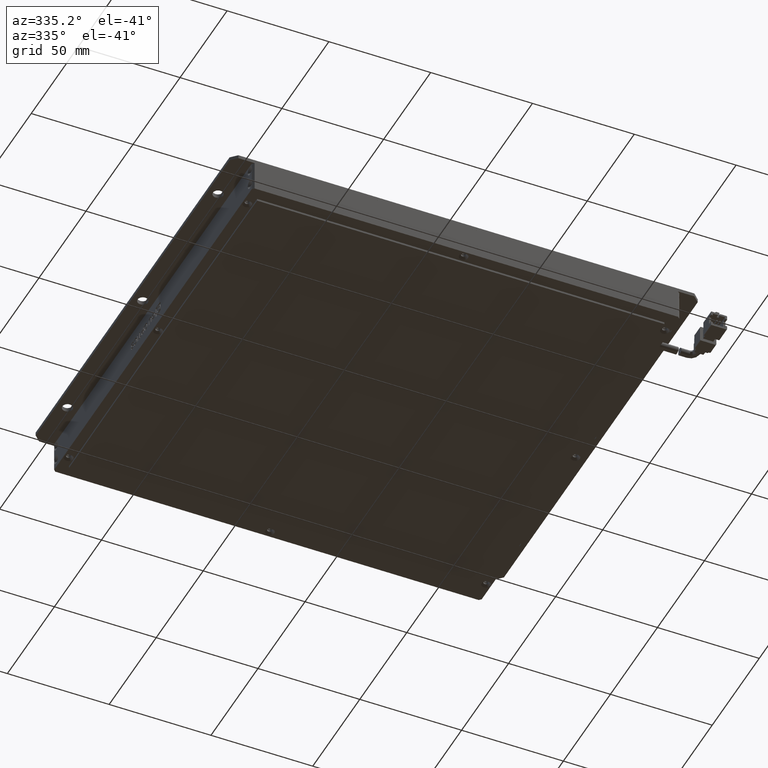
[diagram: clean part render]
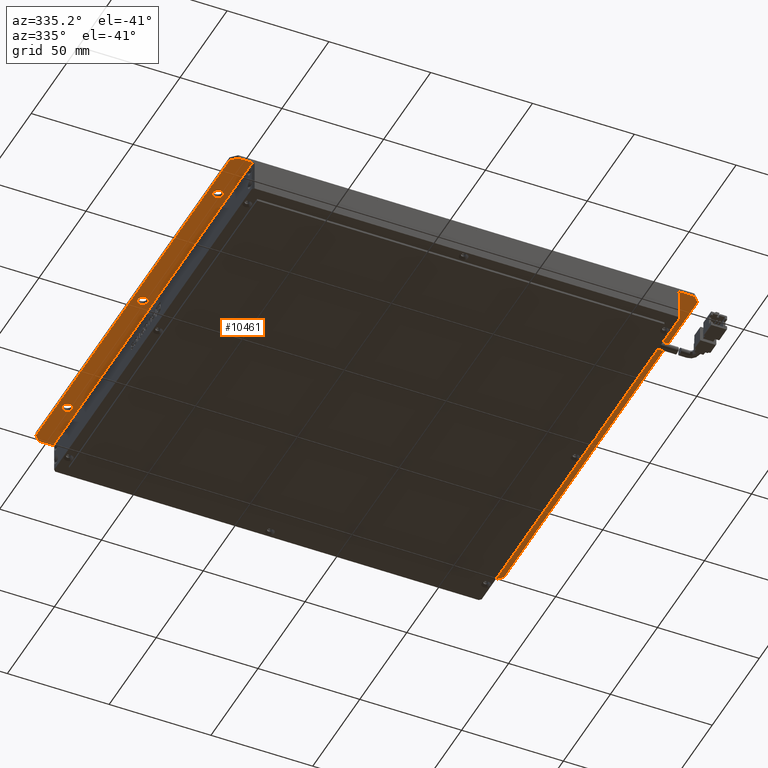
[diagram: same view with one face highlighted and labeled with its STEP entity id]
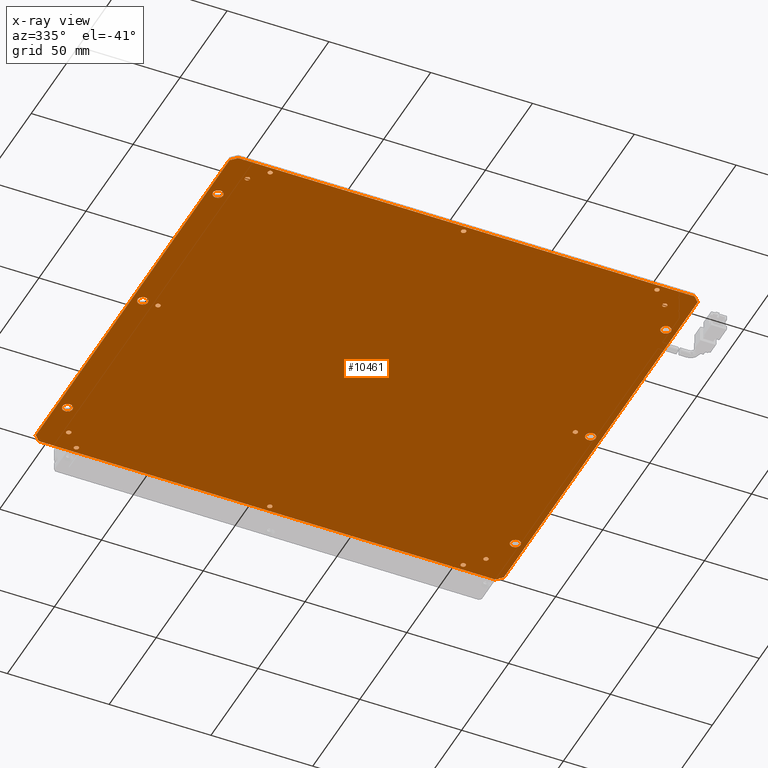
[diagram: x-ray of the same camera — body ghosted, the highlighted face saturated]
A machine part, auxiliary view. The second image highlights one B-rep face of the part: STEP entity #10461.
The next image is the same camera in x-ray: the body ghosted, the highlighted face saturated — about 0% of this face is hidden behind the body in this view.
In plain terms, the highlighted planar face has unit normal (0, -0, 1).
Its self-contained STEP definition (entity closure, byte-faithful):
#143 = ORIENTED_EDGE ( 'NONE', *, *, #17638, .F. ) ;
#157 = EDGE_CURVE ( 'NONE', #3911, #4724, #6068, .T. ) ;
#185 = AXIS2_PLACEMENT_3D ( 'NONE', #18544, #21696, #1172 ) ;
#274 = CARTESIAN_POINT ( 'NONE',  ( 119.9657505824761000, -128.3787539827808100, -2.364644938190885200E-011 ) ) ;
#382 = EDGE_CURVE ( 'NONE', #9693, #5017, #9885, .T. ) ;
#434 = ORIENTED_EDGE ( 'NONE', *, *, #11810, .F. ) ;
#505 = CARTESIAN_POINT ( 'NONE',  ( -96.33424941752389300, -136.3787539827808400, -2.364688306277784600E-011 ) ) ;
#520 = EDGE_LOOP ( 'NONE', ( #9118, #19208 ) ) ;
#571 = CIRCLE ( 'NONE', #9453, 1.199999999999992600 ) ;
#660 = EDGE_LOOP ( 'NONE', ( #4046, #15509 ) ) ;
#705 = DIRECTION ( 'NONE',  ( 0.0000000000000000000, 0.0000000000000000000, -1.000000000000000000 ) ) ;
#714 = VERTEX_POINT ( 'NONE', #3132 ) ;
#753 = ORIENTED_EDGE ( 'NONE', *, *, #14719, .F. ) ;
#892 = CARTESIAN_POINT ( 'NONE',  ( 114.8657505824761700, -136.3787539827808900, -2.364644938190885200E-011 ) ) ;
#925 = EDGE_LOOP ( 'NONE', ( #7444, #6354 ) ) ;
#991 = CIRCLE ( 'NONE', #8288, 2.500000000000002200 ) ;
#1027 = VERTEX_POINT ( 'NONE', #17676 ) ;
#1083 = EDGE_CURVE ( 'NONE', #20893, #6088, #17975, .T. ) ;
#1172 = DIRECTION ( 'NONE',  ( 1.000000000000000000, 0.0000000000000000000, 0.0000000000000000000 ) ) ;
#1206 = EDGE_LOOP ( 'NONE', ( #22317, #7381 ) ) ;
#1209 = VERTEX_POINT ( 'NONE', #18737 ) ;
#1268 = VERTEX_POINT ( 'NONE', #20265 ) ;
#1495 = VERTEX_POINT ( 'NONE', #3640 ) ;
#1507 = CIRCLE ( 'NONE', #185, 2.500000000000002200 ) ;
#1515 = EDGE_CURVE ( 'NONE', #9622, #4455, #11679, .T. ) ;
#1516 = DIRECTION ( 'NONE',  ( 0.0000000000000000000, 0.0000000000000000000, -1.000000000000000000 ) ) ;
#1565 = LINE ( 'NONE', #16076, #1860 ) ;
#1624 = DIRECTION ( 'NONE',  ( 0.0000000000000000000, 0.0000000000000000000, -1.000000000000000000 ) ) ;
#1860 = VECTOR ( 'NONE', #17607, 1000.000000000000000 ) ;
#1871 = EDGE_LOOP ( 'NONE', ( #3506, #7726 ) ) ;
#2122 = CARTESIAN_POINT ( 'NONE',  ( -88.83424941752386400, -113.3787539827808200, -2.364688306277784600E-011 ) ) ;
#2137 = DIRECTION ( 'NONE',  ( -0.7071067811865474600, 0.7071067811865474600, 0.0000000000000000000 ) ) ;
#2156 = CARTESIAN_POINT ( 'NONE',  ( 113.6657505824760800, 69.62124601721916400, -2.364644938190885200E-011 ) ) ;
#2179 = DIRECTION ( 'NONE',  ( 1.000000000000000000, 0.0000000000000000000, 0.0000000000000000000 ) ) ;
#2196 = EDGE_CURVE ( 'NONE', #4455, #9622, #1507, .T. ) ;
#2314 = CARTESIAN_POINT ( 'NONE',  ( 130.6657505824760500, 72.62124601721916400, -2.364753358408133700E-011 ) ) ;
#2392 = CARTESIAN_POINT ( 'NONE',  ( 133.6657505824761100, 69.62124601721913600, -2.364720832342959200E-011 ) ) ;
#2394 = ORIENTED_EDGE ( 'NONE', *, *, #18205, .F. ) ;
#2492 = FACE_BOUND ( 'NONE', #17562, .T. ) ;
#2524 = CARTESIAN_POINT ( 'NONE',  ( -93.33424941752387800, 72.62124601721916400, -2.364688306277784600E-011 ) ) ;
#2525 = AXIS2_PLACEMENT_3D ( 'NONE', #2617, #14884, #4504 ) ;
#2581 = CIRCLE ( 'NONE', #10478, 1.200000000000006600 ) ;
#2617 = CARTESIAN_POINT ( 'NONE',  ( 128.6657505824760500, -113.3787539827808200, -2.364688306277784600E-011 ) ) ;
#2675 = CARTESIAN_POINT ( 'NONE',  ( 128.6657505824760500, -113.3787539827808200, -2.364688306277784600E-011 ) ) ;
#2841 = ORIENTED_EDGE ( 'NONE', *, *, #15551, .F. ) ;
#2866 = CIRCLE ( 'NONE', #11834, 1.200000000000006600 ) ;
#3028 = VERTEX_POINT ( 'NONE', #6779 ) ;
#3043 = FACE_BOUND ( 'NONE', #9179, .T. ) ;
#3132 = CARTESIAN_POINT ( 'NONE',  ( -96.33424941752389300, 69.62124601721916400, -2.364753358408133700E-011 ) ) ;
#3232 = DIRECTION ( 'NONE',  ( 0.0000000000000000000, 0.0000000000000000000, -1.000000000000000000 ) ) ;
#3249 = DIRECTION ( 'NONE',  ( 1.000000000000000000, 0.0000000000000000000, 0.0000000000000000000 ) ) ;
#3281 = EDGE_LOOP ( 'NONE', ( #17972, #9119 ) ) ;
#3285 = ORIENTED_EDGE ( 'NONE', *, *, #4067, .F. ) ;
#3333 = FACE_BOUND ( 'NONE', #1206, .T. ) ;
#3354 = CIRCLE ( 'NONE', #21901, 1.200000000000006600 ) ;
#3450 = VERTEX_POINT ( 'NONE', #11486 ) ;
#3506 = ORIENTED_EDGE ( 'NONE', *, *, #12551, .F. ) ;
#3519 = DIRECTION ( 'NONE',  ( 1.000000000000000000, 0.0000000000000000000, 0.0000000000000000000 ) ) ;
#3564 = EDGE_LOOP ( 'NONE', ( #16340, #18823 ) ) ;
#3640 = CARTESIAN_POINT ( 'NONE',  ( -82.63424941752390400, 61.62124601721919200, -2.364644938190885200E-011 ) ) ;
#3647 = LINE ( 'NONE', #10939, #17005 ) ;
#3662 = DIRECTION ( 'NONE',  ( 1.000000000000000000, 0.0000000000000000000, 0.0000000000000000000 ) ) ;
#3683 = DIRECTION ( 'NONE',  ( -1.000000000000000000, -0.0000000000000000000, 0.0000000000000000000 ) ) ;
#3727 = DIRECTION ( 'NONE',  ( 0.0000000000000000000, 0.0000000000000000000, -1.000000000000000000 ) ) ;
#3766 = EDGE_CURVE ( 'NONE', #10776, #9407, #22547, .T. ) ;
#3769 = CIRCLE ( 'NONE', #22122, 1.200000000000006600 ) ;
#3889 = ORIENTED_EDGE ( 'NONE', *, *, #12560, .F. ) ;
#3911 = VERTEX_POINT ( 'NONE', #22159 ) ;
#3946 = CARTESIAN_POINT ( 'NONE',  ( -93.83424941752386400, -113.3787539827808200, -2.364688306277784600E-011 ) ) ;
#3996 = CARTESIAN_POINT ( 'NONE',  ( 113.6657505824760800, 69.62124601721916400, -2.364644938190885200E-011 ) ) ;
#4046 = ORIENTED_EDGE ( 'NONE', *, *, #4486, .F. ) ;
#4067 = EDGE_CURVE ( 'NONE', #16306, #16516, #5098, .T. ) ;
#4126 = FACE_BOUND ( 'NONE', #20449, .T. ) ;
#4130 = EDGE_CURVE ( 'NONE', #714, #12536, #1565, .T. ) ;
#4159 = DIRECTION ( 'NONE',  ( 0.0000000000000000000, 0.0000000000000000000, -1.000000000000000000 ) ) ;
#4220 = ORIENTED_EDGE ( 'NONE', *, *, #9744, .F. ) ;
#4241 = CIRCLE ( 'NONE', #6389, 2.500000000000002200 ) ;
#4271 = DIRECTION ( 'NONE',  ( 0.7071067811865474600, -0.7071067811865474600, 0.0000000000000000000 ) ) ;
#4315 = AXIS2_PLACEMENT_3D ( 'NONE', #8074, #9818, #21944 ) ;
#4400 = DIRECTION ( 'NONE',  ( 0.0000000000000000000, 0.0000000000000000000, -1.000000000000000000 ) ) ;
#4455 = VERTEX_POINT ( 'NONE', #11519 ) ;
#4486 = EDGE_CURVE ( 'NONE', #4613, #8793, #991, .T. ) ;
#4504 = DIRECTION ( 'NONE',  ( 1.000000000000000000, 0.0000000000000000000, 0.0000000000000000000 ) ) ;
#4520 = DIRECTION ( 'NONE',  ( 0.0000000000000000000, 0.0000000000000000000, -1.000000000000000000 ) ) ;
#4569 = ORIENTED_EDGE ( 'NONE', *, *, #3766, .F. ) ;
#4613 = VERTEX_POINT ( 'NONE', #2122 ) ;
#4724 = VERTEX_POINT ( 'NONE', #892 ) ;
#4735 = EDGE_CURVE ( 'NONE', #13693, #21907, #2581, .T. ) ;
#4744 = VERTEX_POINT ( 'NONE', #7620 ) ;
#4765 = CIRCLE ( 'NONE', #5827, 1.199999999999992600 ) ;
#4797 = CIRCLE ( 'NONE', #12554, 1.200000000000006600 ) ;
#4816 = VERTEX_POINT ( 'NONE', #18348 ) ;
#4829 = DIRECTION ( 'NONE',  ( 1.000000000000000000, 0.0000000000000000000, 0.0000000000000000000 ) ) ;
#4859 = CARTESIAN_POINT ( 'NONE',  ( 131.1657505824760800, -33.37875398278082900, -2.364688306277784600E-011 ) ) ;
#4899 = CARTESIAN_POINT ( 'NONE',  ( 18.66575058247609000, 69.62124601721916400, -2.364644938190885200E-011 ) ) ;
#4939 = AXIS2_PLACEMENT_3D ( 'NONE', #10382, #17500, #22498 ) ;
#5017 = VERTEX_POINT ( 'NONE', #10517 ) ;
#5064 = DIRECTION ( 'NONE',  ( 0.0000000000000000000, 0.0000000000000000000, -1.000000000000000000 ) ) ;
#5098 = CIRCLE ( 'NONE', #6959, 1.200000000000006600 ) ;
#5268 = EDGE_LOOP ( 'NONE', ( #11684, #2394 ) ) ;
#5346 = CIRCLE ( 'NONE', #10364, 1.199999999999992600 ) ;
#5348 = DIRECTION ( 'NONE',  ( 1.000000000000000000, 0.0000000000000000000, 0.0000000000000000000 ) ) ;
#5426 = DIRECTION ( 'NONE',  ( 1.000000000000000000, 0.0000000000000000000, 0.0000000000000000000 ) ) ;
#5604 = CIRCLE ( 'NONE', #7507, 1.200000000000006600 ) ;
#5611 = EDGE_CURVE ( 'NONE', #21907, #13693, #20407, .T. ) ;
#5630 = CARTESIAN_POINT ( 'NONE',  ( 122.3657505824760700, 61.62124601721919200, -2.364644938190885200E-011 ) ) ;
#5645 = AXIS2_PLACEMENT_3D ( 'NONE', #14819, #6072, #18250 ) ;
#5650 = CIRCLE ( 'NONE', #4939, 2.500000000000002200 ) ;
#5717 = ORIENTED_EDGE ( 'NONE', *, *, #17994, .F. ) ;
#5742 = DIRECTION ( 'NONE',  ( 1.000000000000000000, 0.0000000000000000000, 0.0000000000000000000 ) ) ;
#5827 = AXIS2_PLACEMENT_3D ( 'NONE', #12233, #17454, #7043 ) ;
#5901 = DIRECTION ( 'NONE',  ( 1.000000000000000000, 0.0000000000000000000, 0.0000000000000000000 ) ) ;
#5914 = EDGE_CURVE ( 'NONE', #16768, #14773, #3769, .T. ) ;
#6068 = CIRCLE ( 'NONE', #4315, 1.200000000000006600 ) ;
#6072 = DIRECTION ( 'NONE',  ( 0.0000000000000000000, 0.0000000000000000000, -1.000000000000000000 ) ) ;
#6088 = VERTEX_POINT ( 'NONE', #4859 ) ;
#6173 = DIRECTION ( 'NONE',  ( 0.0000000000000000000, 0.0000000000000000000, -1.000000000000000000 ) ) ;
#6179 = CIRCLE ( 'NONE', #22269, 1.199999999999992600 ) ;
#6278 = AXIS2_PLACEMENT_3D ( 'NONE', #20874, #13982, #3519 ) ;
#6354 = ORIENTED_EDGE ( 'NONE', *, *, #1083, .F. ) ;
#6358 = EDGE_LOOP ( 'NONE', ( #20608, #12833 ) ) ;
#6373 = CARTESIAN_POINT ( 'NONE',  ( -82.63424941752387600, -128.3787539827808100, -2.364644938190885200E-011 ) ) ;
#6384 = AXIS2_PLACEMENT_3D ( 'NONE', #15113, #13909, #20720 ) ;
#6389 = AXIS2_PLACEMENT_3D ( 'NONE', #8882, #1624, #3662 ) ;
#6420 = CARTESIAN_POINT ( 'NONE',  ( 19.86575058247608200, 69.62124601721916400, -2.364644938190885200E-011 ) ) ;
#6516 = DIRECTION ( 'NONE',  ( 0.0000000000000000000, 0.0000000000000000000, -1.000000000000000000 ) ) ;
#6603 = FACE_BOUND ( 'NONE', #3281, .T. ) ;
#6671 = CIRCLE ( 'NONE', #9692, 1.199999999999992600 ) ;
#6680 = DIRECTION ( 'NONE',  ( 1.000000000000000000, 0.0000000000000000000, 0.0000000000000000000 ) ) ;
#6760 = ORIENTED_EDGE ( 'NONE', *, *, #382, .F. ) ;
#6764 = AXIS2_PLACEMENT_3D ( 'NONE', #3996, #19615, #9165 ) ;
#6779 = CARTESIAN_POINT ( 'NONE',  ( 17.46575058247609700, 69.62124601721916400, -2.364644938190885200E-011 ) ) ;
#6837 = VERTEX_POINT ( 'NONE', #18244 ) ;
#6847 = DIRECTION ( 'NONE',  ( 0.0000000000000000000, 0.0000000000000000000, -1.000000000000000000 ) ) ;
#6887 = VERTEX_POINT ( 'NONE', #2392 ) ;
#6926 = CIRCLE ( 'NONE', #6278, 2.500000000000002200 ) ;
#6959 = AXIS2_PLACEMENT_3D ( 'NONE', #8596, #10488, #19064 ) ;
#7043 = DIRECTION ( 'NONE',  ( 1.000000000000000000, 0.0000000000000000000, 0.0000000000000000000 ) ) ;
#7112 = CIRCLE ( 'NONE', #7397, 1.199999999999992600 ) ;
#7145 = DIRECTION ( 'NONE',  ( 0.0000000000000000000, 1.000000000000000000, 0.0000000000000000000 ) ) ;
#7161 = FACE_BOUND ( 'NONE', #1871, .T. ) ;
#7214 = CARTESIAN_POINT ( 'NONE',  ( 122.3657505824761200, -33.37875398278082900, -2.364644938190885200E-011 ) ) ;
#7217 = CARTESIAN_POINT ( 'NONE',  ( 133.6657505824761400, 72.62124601721916400, -2.364688306277784600E-011 ) ) ;
#7225 = VECTOR ( 'NONE', #18391, 1000.000000000000100 ) ;
#7262 = CARTESIAN_POINT ( 'NONE',  ( 121.1657505824760500, 61.62124601721919200, -2.364644938190885200E-011 ) ) ;
#7339 = VERTEX_POINT ( 'NONE', #17843 ) ;
#7372 = VECTOR ( 'NONE', #3683, 1000.000000000000000 ) ;
#7381 = ORIENTED_EDGE ( 'NONE', *, *, #157, .F. ) ;
#7397 = AXIS2_PLACEMENT_3D ( 'NONE', #13533, #5064, #17333 ) ;
#7444 = ORIENTED_EDGE ( 'NONE', *, *, #16946, .F. ) ;
#7507 = AXIS2_PLACEMENT_3D ( 'NONE', #11948, #3232, #4829 ) ;
#7620 = CARTESIAN_POINT ( 'NONE',  ( -77.53424941752391000, 69.62124601721916400, -2.364644938190885200E-011 ) ) ;
#7696 = AXIS2_PLACEMENT_3D ( 'NONE', #2675, #14732, #7964 ) ;
#7699 = FACE_BOUND ( 'NONE', #6358, .T. ) ;
#7726 = ORIENTED_EDGE ( 'NONE', *, *, #17556, .F. ) ;
#7835 = ORIENTED_EDGE ( 'NONE', *, *, #10546, .F. ) ;
#7964 = DIRECTION ( 'NONE',  ( 1.000000000000000000, 0.0000000000000000000, 0.0000000000000000000 ) ) ;
#8074 = CARTESIAN_POINT ( 'NONE',  ( 113.6657505824761600, -136.3787539827808900, -2.364644938190885200E-011 ) ) ;
#8085 = CARTESIAN_POINT ( 'NONE',  ( 114.8657505824760800, 69.62124601721916400, -2.364644938190885200E-011 ) ) ;
#8125 = DIRECTION ( 'NONE',  ( 1.000000000000000000, 0.0000000000000000000, 0.0000000000000000000 ) ) ;
#8139 = VERTEX_POINT ( 'NONE', #11640 ) ;
#8165 = AXIS2_PLACEMENT_3D ( 'NONE', #10989, #6173, #21311 ) ;
#8253 = EDGE_CURVE ( 'NONE', #8139, #6887, #19635, .T. ) ;
#8272 = DIRECTION ( 'NONE',  ( 0.0000000000000000000, 0.0000000000000000000, -1.000000000000000000 ) ) ;
#8276 = FACE_BOUND ( 'NONE', #11856, .T. ) ;
#8288 = AXIS2_PLACEMENT_3D ( 'NONE', #20315, #8272, #9931 ) ;
#8310 = ORIENTED_EDGE ( 'NONE', *, *, #11649, .F. ) ;
#8402 = CARTESIAN_POINT ( 'NONE',  ( -85.03424941752388100, 61.62124601721919200, -2.364644938190885200E-011 ) ) ;
#8515 = CARTESIAN_POINT ( 'NONE',  ( 126.1657505824760600, -33.37875398278082900, -2.364688306277784600E-011 ) ) ;
#8596 = CARTESIAN_POINT ( 'NONE',  ( -83.83424941752387800, -33.37875398278082900, -2.364644938190885200E-011 ) ) ;
#8793 = VERTEX_POINT ( 'NONE', #3946 ) ;
#8816 = ORIENTED_EDGE ( 'NONE', *, *, #15658, .F. ) ;
#8859 = DIRECTION ( 'NONE',  ( 1.000000000000000000, 0.0000000000000000000, 0.0000000000000000000 ) ) ;
#8882 = CARTESIAN_POINT ( 'NONE',  ( -91.33424941752387800, 46.62124601721917800, -2.364688306277784600E-011 ) ) ;
#8939 = CARTESIAN_POINT ( 'NONE',  ( 121.1657505824761100, -33.37875398278082900, -2.364644938190885200E-011 ) ) ;
#8976 = DIRECTION ( 'NONE',  ( 0.0000000000000000000, 0.0000000000000000000, -1.000000000000000000 ) ) ;
#8984 = CARTESIAN_POINT ( 'NONE',  ( 133.6657505824760800, 72.62124601721916400, -2.364688306277784600E-011 ) ) ;
#9004 = DIRECTION ( 'NONE',  ( 0.0000000000000000000, 0.0000000000000000000, -1.000000000000000000 ) ) ;
#9099 = DIRECTION ( 'NONE',  ( 0.0000000000000000000, 0.0000000000000000000, -1.000000000000000000 ) ) ;
#9118 = ORIENTED_EDGE ( 'NONE', *, *, #9328, .F. ) ;
#9119 = ORIENTED_EDGE ( 'NONE', *, *, #18625, .F. ) ;
#9165 = DIRECTION ( 'NONE',  ( 1.000000000000000000, 0.0000000000000000000, 0.0000000000000000000 ) ) ;
#9166 = CARTESIAN_POINT ( 'NONE',  ( 126.1657505824760600, 46.62124601721915000, -2.364688306277784600E-011 ) ) ;
#9179 = EDGE_LOOP ( 'NONE', ( #2841, #15030 ) ) ;
#9243 = CARTESIAN_POINT ( 'NONE',  ( -83.83424941752387800, -33.37875398278082900, -2.364644938190885200E-011 ) ) ;
#9296 = EDGE_CURVE ( 'NONE', #19514, #14546, #5346, .T. ) ;
#9328 = EDGE_CURVE ( 'NONE', #17440, #3450, #18985, .T. ) ;
#9366 = FACE_BOUND ( 'NONE', #520, .T. ) ;
#9407 = VERTEX_POINT ( 'NONE', #10902 ) ;
#9453 = AXIS2_PLACEMENT_3D ( 'NONE', #19402, #9004, #21129 ) ;
#9589 = PLANE ( 'NONE',  #17065 ) ;
#9617 = DIRECTION ( 'NONE',  ( 0.0000000000000000000, 0.0000000000000000000, -1.000000000000000000 ) ) ;
#9622 = VERTEX_POINT ( 'NONE', #20362 ) ;
#9690 = VERTEX_POINT ( 'NONE', #8085 ) ;
#9692 = AXIS2_PLACEMENT_3D ( 'NONE', #20105, #11324, #5901 ) ;
#9693 = VERTEX_POINT ( 'NONE', #6373 ) ;
#9744 = EDGE_CURVE ( 'NONE', #1209, #19906, #4241, .T. ) ;
#9803 = LINE ( 'NONE', #21732, #16583 ) ;
#9808 = EDGE_CURVE ( 'NONE', #1027, #4816, #4765, .T. ) ;
#9818 = DIRECTION ( 'NONE',  ( 0.0000000000000000000, 0.0000000000000000000, -1.000000000000000000 ) ) ;
#9845 = CARTESIAN_POINT ( 'NONE',  ( 122.3657505824761200, -128.3787539827808100, -2.364644938190885200E-011 ) ) ;
#9870 = EDGE_CURVE ( 'NONE', #6887, #14932, #21373, .T. ) ;
#9885 = CIRCLE ( 'NONE', #21804, 1.200000000000006600 ) ;
#9890 = FACE_BOUND ( 'NONE', #18758, .T. ) ;
#9931 = DIRECTION ( 'NONE',  ( 1.000000000000000000, 0.0000000000000000000, 0.0000000000000000000 ) ) ;
#10137 = CARTESIAN_POINT ( 'NONE',  ( -93.33424941752387800, -139.3787539827808400, -2.364688306277784600E-011 ) ) ;
#10237 = CIRCLE ( 'NONE', #21608, 1.200000000000006600 ) ;
#10262 = VERTEX_POINT ( 'NONE', #9166 ) ;
#10364 = AXIS2_PLACEMENT_3D ( 'NONE', #12649, #9099, #17898 ) ;
#10382 = CARTESIAN_POINT ( 'NONE',  ( 128.6657505824760500, -33.37875398278082900, -2.364688306277784600E-011 ) ) ;
#10461 = ADVANCED_FACE ( 'NONE', ( #11780, #13970, #9366, #20748, #3333, #7699, #3043, #2492, #4126, #6603, #21303, #7161, #9890, #8276, #21832, #16688, #21015, #16395, #20462 ), #9589, .F. ) ;
#10478 = AXIS2_PLACEMENT_3D ( 'NONE', #14835, #4159, #19851 ) ;
#10488 = DIRECTION ( 'NONE',  ( 0.0000000000000000000, 0.0000000000000000000, -1.000000000000000000 ) ) ;
#10517 = CARTESIAN_POINT ( 'NONE',  ( -85.03424941752388100, -128.3787539827808100, -2.364644938190885200E-011 ) ) ;
#10518 = VECTOR ( 'NONE', #2137, 1000.000000000000100 ) ;
#10546 = EDGE_CURVE ( 'NONE', #3028, #11077, #13946, .T. ) ;
#10555 = CARTESIAN_POINT ( 'NONE',  ( -91.33424941752386400, -113.3787539827808200, -2.364688306277784600E-011 ) ) ;
#10571 = DIRECTION ( 'NONE',  ( 1.000000000000000000, 0.0000000000000000000, 0.0000000000000000000 ) ) ;
#10776 = VERTEX_POINT ( 'NONE', #13832 ) ;
#10783 = ORIENTED_EDGE ( 'NONE', *, *, #9870, .F. ) ;
#10902 = CARTESIAN_POINT ( 'NONE',  ( 131.1657505824760800, -113.3787539827808200, -2.364688306277784600E-011 ) ) ;
#10939 = CARTESIAN_POINT ( 'NONE',  ( -96.33424941752389300, -136.3787539827808100, -2.364688306277784600E-011 ) ) ;
#10989 = CARTESIAN_POINT ( 'NONE',  ( 128.6657505824760500, -33.37875398278082900, -2.364688306277784600E-011 ) ) ;
#10995 = CARTESIAN_POINT ( 'NONE',  ( -82.63424941752387600, -33.37875398278082900, -2.364644938190885200E-011 ) ) ;
#11077 = VERTEX_POINT ( 'NONE', #6420 ) ;
#11132 = CIRCLE ( 'NONE', #18228, 2.500000000000002200 ) ;
#11195 = CARTESIAN_POINT ( 'NONE',  ( -83.83424941752387800, -128.3787539827808100, -2.364644938190885200E-011 ) ) ;
#11295 = DIRECTION ( 'NONE',  ( 1.000000000000000000, 0.0000000000000000000, 0.0000000000000000000 ) ) ;
#11316 = VERTEX_POINT ( 'NONE', #22223 ) ;
#11324 = DIRECTION ( 'NONE',  ( 0.0000000000000000000, 0.0000000000000000000, -1.000000000000000000 ) ) ;
#11486 = CARTESIAN_POINT ( 'NONE',  ( 119.9657505824761000, -33.37875398278082900, -2.364644938190885200E-011 ) ) ;
#11519 = CARTESIAN_POINT ( 'NONE',  ( -93.83424941752386400, -33.37875398278082900, -2.364688306277784600E-011 ) ) ;
#11609 = CARTESIAN_POINT ( 'NONE',  ( -85.03424941752388100, -33.37875398278082900, -2.364644938190885200E-011 ) ) ;
#11640 = CARTESIAN_POINT ( 'NONE',  ( 133.6657505824761400, -136.3787539827808100, -2.364753358408133700E-011 ) ) ;
#11649 = EDGE_CURVE ( 'NONE', #6837, #8139, #9803, .T. ) ;
#11679 = CIRCLE ( 'NONE', #15443, 2.500000000000002200 ) ;
#11684 = ORIENTED_EDGE ( 'NONE', *, *, #5914, .F. ) ;
#11780 = FACE_OUTER_BOUND ( 'NONE', #13748, .T. ) ;
#11808 = DIRECTION ( 'NONE',  ( 1.000000000000000000, 0.0000000000000000000, 0.0000000000000000000 ) ) ;
#11810 = EDGE_CURVE ( 'NONE', #10262, #7339, #14933, .T. ) ;
#11834 = AXIS2_PLACEMENT_3D ( 'NONE', #21786, #4520, #15123 ) ;
#11856 = EDGE_LOOP ( 'NONE', ( #18865, #4220 ) ) ;
#11858 = ORIENTED_EDGE ( 'NONE', *, *, #13241, .F. ) ;
#11948 = CARTESIAN_POINT ( 'NONE',  ( 121.1657505824761100, -128.3787539827808100, -2.364644938190885200E-011 ) ) ;
#11987 = AXIS2_PLACEMENT_3D ( 'NONE', #4899, #6516, #6680 ) ;
#12018 = LINE ( 'NONE', #8984, #7372 ) ;
#12127 = CIRCLE ( 'NONE', #15527, 1.199999999999992600 ) ;
#12135 = VERTEX_POINT ( 'NONE', #8402 ) ;
#12156 = EDGE_LOOP ( 'NONE', ( #22466, #8816 ) ) ;
#12233 = CARTESIAN_POINT ( 'NONE',  ( -76.33424941752390700, -136.3787539827808100, -2.364644938190885200E-011 ) ) ;
#12420 = ORIENTED_EDGE ( 'NONE', *, *, #22196, .F. ) ;
#12536 = VERTEX_POINT ( 'NONE', #505 ) ;
#12551 = EDGE_CURVE ( 'NONE', #9690, #20292, #13239, .T. ) ;
#12554 = AXIS2_PLACEMENT_3D ( 'NONE', #21665, #9617, #11295 ) ;
#12560 = EDGE_CURVE ( 'NONE', #16516, #16306, #14613, .T. ) ;
#12649 = CARTESIAN_POINT ( 'NONE',  ( 18.66575058247609000, -136.3787539827808600, -2.364644938190885200E-011 ) ) ;
#12833 = ORIENTED_EDGE ( 'NONE', *, *, #17720, .F. ) ;
#12838 = CARTESIAN_POINT ( 'NONE',  ( -83.83424941752389300, 61.62124601721919200, -2.364644938190885200E-011 ) ) ;
#13239 = CIRCLE ( 'NONE', #6764, 1.200000000000006600 ) ;
#13241 = EDGE_CURVE ( 'NONE', #12536, #13999, #3647, .T. ) ;
#13367 = CIRCLE ( 'NONE', #6384, 1.199999999999992600 ) ;
#13375 = DIRECTION ( 'NONE',  ( 0.0000000000000000000, -0.0000000000000000000, 1.000000000000000000 ) ) ;
#13505 = DIRECTION ( 'NONE',  ( 0.0000000000000000000, 0.0000000000000000000, -1.000000000000000000 ) ) ;
#13533 = CARTESIAN_POINT ( 'NONE',  ( -76.33424941752390700, 69.62124601721916400, -2.364644938190885200E-011 ) ) ;
#13693 = VERTEX_POINT ( 'NONE', #5630 ) ;
#13748 = EDGE_LOOP ( 'NONE', ( #10783, #21179, #8310, #18953, #11858, #17640, #143, #753 ) ) ;
#13832 = CARTESIAN_POINT ( 'NONE',  ( 126.1657505824760600, -113.3787539827808200, -2.364688306277784600E-011 ) ) ;
#13857 = CARTESIAN_POINT ( 'NONE',  ( -91.33424941752387800, 46.62124601721917800, -2.364688306277784600E-011 ) ) ;
#13909 = DIRECTION ( 'NONE',  ( 0.0000000000000000000, 0.0000000000000000000, -1.000000000000000000 ) ) ;
#13912 = CARTESIAN_POINT ( 'NONE',  ( -83.83424941752387800, -128.3787539827808100, -2.364644938190885200E-011 ) ) ;
#13946 = CIRCLE ( 'NONE', #11987, 1.199999999999992600 ) ;
#13970 = FACE_BOUND ( 'NONE', #5268, .T. ) ;
#13982 = DIRECTION ( 'NONE',  ( 0.0000000000000000000, 0.0000000000000000000, -1.000000000000000000 ) ) ;
#13999 = VERTEX_POINT ( 'NONE', #10137 ) ;
#14174 = DIRECTION ( 'NONE',  ( 0.0000000000000000000, 0.0000000000000000000, -1.000000000000000000 ) ) ;
#14525 = EDGE_CURVE ( 'NONE', #1268, #4744, #7112, .T. ) ;
#14546 = VERTEX_POINT ( 'NONE', #17029 ) ;
#14613 = CIRCLE ( 'NONE', #16824, 1.200000000000006600 ) ;
#14719 = EDGE_CURVE ( 'NONE', #14932, #11316, #12018, .T. ) ;
#14732 = DIRECTION ( 'NONE',  ( 0.0000000000000000000, 0.0000000000000000000, -1.000000000000000000 ) ) ;
#14773 = VERTEX_POINT ( 'NONE', #274 ) ;
#14819 = CARTESIAN_POINT ( 'NONE',  ( -76.33424941752390700, -136.3787539827808100, -2.364644938190885200E-011 ) ) ;
#14835 = CARTESIAN_POINT ( 'NONE',  ( 121.1657505824760500, 61.62124601721919200, -2.364644938190885200E-011 ) ) ;
#14837 = ORIENTED_EDGE ( 'NONE', *, *, #5611, .F. ) ;
#14853 = CARTESIAN_POINT ( 'NONE',  ( 121.1657505824761100, -128.3787539827808100, -2.364644938190885200E-011 ) ) ;
#14884 = DIRECTION ( 'NONE',  ( 0.0000000000000000000, 0.0000000000000000000, -1.000000000000000000 ) ) ;
#14932 = VERTEX_POINT ( 'NONE', #2314 ) ;
#14933 = CIRCLE ( 'NONE', #21448, 2.500000000000002200 ) ;
#15030 = ORIENTED_EDGE ( 'NONE', *, *, #9808, .F. ) ;
#15047 = EDGE_CURVE ( 'NONE', #9407, #10776, #17773, .T. ) ;
#15083 = EDGE_LOOP ( 'NONE', ( #15140, #14837 ) ) ;
#15113 = CARTESIAN_POINT ( 'NONE',  ( -76.33424941752390700, 69.62124601721916400, -2.364644938190885200E-011 ) ) ;
#15123 = DIRECTION ( 'NONE',  ( 1.000000000000000000, 0.0000000000000000000, 0.0000000000000000000 ) ) ;
#15140 = ORIENTED_EDGE ( 'NONE', *, *, #4735, .F. ) ;
#15392 = EDGE_LOOP ( 'NONE', ( #12420, #434 ) ) ;
#15443 = AXIS2_PLACEMENT_3D ( 'NONE', #15746, #14174, #8859 ) ;
#15509 = ORIENTED_EDGE ( 'NONE', *, *, #16412, .F. ) ;
#15513 = EDGE_CURVE ( 'NONE', #13999, #6837, #19902, .T. ) ;
#15527 = AXIS2_PLACEMENT_3D ( 'NONE', #12838, #705, #5742 ) ;
#15551 = EDGE_CURVE ( 'NONE', #4816, #1027, #21771, .T. ) ;
#15658 = EDGE_CURVE ( 'NONE', #4744, #1268, #13367, .T. ) ;
#15746 = CARTESIAN_POINT ( 'NONE',  ( -91.33424941752386400, -33.37875398278082900, -2.364688306277784600E-011 ) ) ;
#15817 = AXIS2_PLACEMENT_3D ( 'NONE', #13857, #6847, #11808 ) ;
#15840 = DIRECTION ( 'NONE',  ( 0.0000000000000000000, 0.0000000000000000000, -1.000000000000000000 ) ) ;
#16010 = DIRECTION ( 'NONE',  ( 1.000000000000000000, 0.0000000000000000000, 0.0000000000000000000 ) ) ;
#16076 = CARTESIAN_POINT ( 'NONE',  ( -96.33424941752389300, 72.62124601721916400, -2.364688306277784600E-011 ) ) ;
#16306 = VERTEX_POINT ( 'NONE', #11609 ) ;
#16340 = ORIENTED_EDGE ( 'NONE', *, *, #1515, .F. ) ;
#16395 = FACE_BOUND ( 'NONE', #925, .T. ) ;
#16412 = EDGE_CURVE ( 'NONE', #8793, #4613, #11132, .T. ) ;
#16516 = VERTEX_POINT ( 'NONE', #10995 ) ;
#16583 = VECTOR ( 'NONE', #21662, 1000.000000000000100 ) ;
#16598 = DIRECTION ( 'NONE',  ( 1.000000000000000000, 0.0000000000000000000, 0.0000000000000000000 ) ) ;
#16688 = FACE_BOUND ( 'NONE', #660, .T. ) ;
#16768 = VERTEX_POINT ( 'NONE', #9845 ) ;
#16824 = AXIS2_PLACEMENT_3D ( 'NONE', #9243, #21362, #17804 ) ;
#16946 = EDGE_CURVE ( 'NONE', #6088, #20893, #5650, .T. ) ;
#17005 = VECTOR ( 'NONE', #4271, 1000.000000000000100 ) ;
#17029 = CARTESIAN_POINT ( 'NONE',  ( 17.46575058247609700, -136.3787539827808600, -2.364644938190885200E-011 ) ) ;
#17065 = AXIS2_PLACEMENT_3D ( 'NONE', #20054, #13375, #21781 ) ;
#17189 = EDGE_LOOP ( 'NONE', ( #20200, #4569 ) ) ;
#17264 = EDGE_CURVE ( 'NONE', #4724, #3911, #2866, .T. ) ;
#17333 = DIRECTION ( 'NONE',  ( 1.000000000000000000, 0.0000000000000000000, 0.0000000000000000000 ) ) ;
#17440 = VERTEX_POINT ( 'NONE', #7214 ) ;
#17454 = DIRECTION ( 'NONE',  ( 0.0000000000000000000, 0.0000000000000000000, -1.000000000000000000 ) ) ;
#17500 = DIRECTION ( 'NONE',  ( 0.0000000000000000000, 0.0000000000000000000, -1.000000000000000000 ) ) ;
#17556 = EDGE_CURVE ( 'NONE', #20292, #9690, #10237, .T. ) ;
#17562 = EDGE_LOOP ( 'NONE', ( #6760, #5717 ) ) ;
#17607 = DIRECTION ( 'NONE',  ( -0.0000000000000000000, -1.000000000000000000, -0.0000000000000000000 ) ) ;
#17638 = EDGE_CURVE ( 'NONE', #11316, #714, #18386, .T. ) ;
#17640 = ORIENTED_EDGE ( 'NONE', *, *, #4130, .F. ) ;
#17646 = CARTESIAN_POINT ( 'NONE',  ( 19.86575058247608200, -136.3787539827808600, -2.364644938190885200E-011 ) ) ;
#17676 = CARTESIAN_POINT ( 'NONE',  ( -77.53424941752391000, -136.3787539827808100, -2.364644938190885200E-011 ) ) ;
#17720 = EDGE_CURVE ( 'NONE', #14546, #19514, #6671, .T. ) ;
#17742 = VECTOR ( 'NONE', #7145, 1000.000000000000000 ) ;
#17757 = CIRCLE ( 'NONE', #15817, 2.500000000000002200 ) ;
#17762 = AXIS2_PLACEMENT_3D ( 'NONE', #8939, #19333, #21065 ) ;
#17773 = CIRCLE ( 'NONE', #7696, 2.500000000000002200 ) ;
#17804 = DIRECTION ( 'NONE',  ( 1.000000000000000000, 0.0000000000000000000, 0.0000000000000000000 ) ) ;
#17837 = CARTESIAN_POINT ( 'NONE',  ( 133.6657505824760800, 69.62124601721916400, -2.364688306277784600E-011 ) ) ;
#17843 = CARTESIAN_POINT ( 'NONE',  ( 131.1657505824760800, 46.62124601721915000, -2.364688306277784600E-011 ) ) ;
#17898 = DIRECTION ( 'NONE',  ( 1.000000000000000000, 0.0000000000000000000, 0.0000000000000000000 ) ) ;
#17972 = ORIENTED_EDGE ( 'NONE', *, *, #19517, .F. ) ;
#17975 = CIRCLE ( 'NONE', #8165, 2.500000000000002200 ) ;
#17994 = EDGE_CURVE ( 'NONE', #5017, #9693, #3354, .T. ) ;
#18101 = CARTESIAN_POINT ( 'NONE',  ( 119.9657505824760500, 61.62124601721919200, -2.364644938190885200E-011 ) ) ;
#18169 = DIRECTION ( 'NONE',  ( 1.000000000000000000, 0.0000000000000000000, -0.0000000000000000000 ) ) ;
#18205 = EDGE_CURVE ( 'NONE', #14773, #16768, #5604, .T. ) ;
#18228 = AXIS2_PLACEMENT_3D ( 'NONE', #10555, #3727, #5348 ) ;
#18244 = CARTESIAN_POINT ( 'NONE',  ( 130.6657505824761100, -139.3787539827808400, -2.364720832342959200E-011 ) ) ;
#18250 = DIRECTION ( 'NONE',  ( 1.000000000000000000, 0.0000000000000000000, 0.0000000000000000000 ) ) ;
#18348 = CARTESIAN_POINT ( 'NONE',  ( -75.13424941752391800, -136.3787539827808100, -2.364644938190885200E-011 ) ) ;
#18386 = LINE ( 'NONE', #2524, #7225 ) ;
#18391 = DIRECTION ( 'NONE',  ( -0.7071067811865474600, -0.7071067811865474600, 0.0000000000000000000 ) ) ;
#18412 = CARTESIAN_POINT ( 'NONE',  ( 133.6657505824760800, -139.3787539827808400, -2.364688306277784600E-011 ) ) ;
#18541 = CARTESIAN_POINT ( 'NONE',  ( 18.66575058247609000, 69.62124601721916400, -2.364644938190885200E-011 ) ) ;
#18544 = CARTESIAN_POINT ( 'NONE',  ( -91.33424941752386400, -33.37875398278082900, -2.364688306277784600E-011 ) ) ;
#18625 = EDGE_CURVE ( 'NONE', #12135, #1495, #12127, .T. ) ;
#18648 = ORIENTED_EDGE ( 'NONE', *, *, #20840, .F. ) ;
#18737 = CARTESIAN_POINT ( 'NONE',  ( -93.83424941752387800, 46.62124601721917800, -2.364688306277784600E-011 ) ) ;
#18758 = EDGE_LOOP ( 'NONE', ( #18648, #7835 ) ) ;
#18823 = ORIENTED_EDGE ( 'NONE', *, *, #2196, .F. ) ;
#18865 = ORIENTED_EDGE ( 'NONE', *, *, #19262, .F. ) ;
#18953 = ORIENTED_EDGE ( 'NONE', *, *, #15513, .F. ) ;
#18985 = CIRCLE ( 'NONE', #17762, 1.200000000000006600 ) ;
#19064 = DIRECTION ( 'NONE',  ( 1.000000000000000000, 0.0000000000000000000, 0.0000000000000000000 ) ) ;
#19083 = CARTESIAN_POINT ( 'NONE',  ( -88.83424941752387800, 46.62124601721917800, -2.364688306277784600E-011 ) ) ;
#19172 = CARTESIAN_POINT ( 'NONE',  ( 128.6657505824760500, 46.62124601721915000, -2.364688306277784600E-011 ) ) ;
#19208 = ORIENTED_EDGE ( 'NONE', *, *, #21276, .F. ) ;
#19262 = EDGE_CURVE ( 'NONE', #19906, #1209, #17757, .T. ) ;
#19333 = DIRECTION ( 'NONE',  ( 0.0000000000000000000, 0.0000000000000000000, -1.000000000000000000 ) ) ;
#19402 = CARTESIAN_POINT ( 'NONE',  ( -83.83424941752389300, 61.62124601721919200, -2.364644938190885200E-011 ) ) ;
#19514 = VERTEX_POINT ( 'NONE', #17646 ) ;
#19517 = EDGE_CURVE ( 'NONE', #1495, #12135, #571, .T. ) ;
#19615 = DIRECTION ( 'NONE',  ( 0.0000000000000000000, 0.0000000000000000000, -1.000000000000000000 ) ) ;
#19635 = LINE ( 'NONE', #7217, #17742 ) ;
#19738 = DIRECTION ( 'NONE',  ( 0.0000000000000000000, 0.0000000000000000000, -1.000000000000000000 ) ) ;
#19851 = DIRECTION ( 'NONE',  ( 1.000000000000000000, 0.0000000000000000000, 0.0000000000000000000 ) ) ;
#19902 = LINE ( 'NONE', #18412, #20698 ) ;
#19906 = VERTEX_POINT ( 'NONE', #19083 ) ;
#19969 = CARTESIAN_POINT ( 'NONE',  ( 112.4657505824760800, 69.62124601721916400, -2.364644938190885200E-011 ) ) ;
#20054 = CARTESIAN_POINT ( 'NONE',  ( 133.6657505824760800, 72.62124601721916400, -2.364688306277784600E-011 ) ) ;
#20105 = CARTESIAN_POINT ( 'NONE',  ( 18.66575058247609000, -136.3787539827808600, -2.364644938190885200E-011 ) ) ;
#20200 = ORIENTED_EDGE ( 'NONE', *, *, #15047, .F. ) ;
#20265 = CARTESIAN_POINT ( 'NONE',  ( -75.13424941752391800, 69.62124601721916400, -2.364644938190885200E-011 ) ) ;
#20292 = VERTEX_POINT ( 'NONE', #19969 ) ;
#20315 = CARTESIAN_POINT ( 'NONE',  ( -91.33424941752386400, -113.3787539827808200, -2.364688306277784600E-011 ) ) ;
#20362 = CARTESIAN_POINT ( 'NONE',  ( -88.83424941752386400, -33.37875398278082900, -2.364688306277784600E-011 ) ) ;
#20407 = CIRCLE ( 'NONE', #21675, 1.200000000000006600 ) ;
#20449 = EDGE_LOOP ( 'NONE', ( #3889, #3285 ) ) ;
#20462 = FACE_BOUND ( 'NONE', #15392, .T. ) ;
#20608 = ORIENTED_EDGE ( 'NONE', *, *, #9296, .F. ) ;
#20698 = VECTOR ( 'NONE', #18169, 1000.000000000000000 ) ;
#20720 = DIRECTION ( 'NONE',  ( 1.000000000000000000, 0.0000000000000000000, 0.0000000000000000000 ) ) ;
#20748 = FACE_BOUND ( 'NONE', #15083, .T. ) ;
#20840 = EDGE_CURVE ( 'NONE', #11077, #3028, #6179, .T. ) ;
#20874 = CARTESIAN_POINT ( 'NONE',  ( 128.6657505824760500, 46.62124601721915000, -2.364688306277784600E-011 ) ) ;
#20893 = VERTEX_POINT ( 'NONE', #8515 ) ;
#21015 = FACE_BOUND ( 'NONE', #17189, .T. ) ;
#21065 = DIRECTION ( 'NONE',  ( 1.000000000000000000, 0.0000000000000000000, 0.0000000000000000000 ) ) ;
#21129 = DIRECTION ( 'NONE',  ( 1.000000000000000000, 0.0000000000000000000, 0.0000000000000000000 ) ) ;
#21179 = ORIENTED_EDGE ( 'NONE', *, *, #8253, .F. ) ;
#21276 = EDGE_CURVE ( 'NONE', #3450, #17440, #4797, .T. ) ;
#21288 = DIRECTION ( 'NONE',  ( 0.0000000000000000000, 0.0000000000000000000, -1.000000000000000000 ) ) ;
#21303 = FACE_BOUND ( 'NONE', #12156, .T. ) ;
#21311 = DIRECTION ( 'NONE',  ( 1.000000000000000000, 0.0000000000000000000, 0.0000000000000000000 ) ) ;
#21362 = DIRECTION ( 'NONE',  ( 0.0000000000000000000, 0.0000000000000000000, -1.000000000000000000 ) ) ;
#21373 = LINE ( 'NONE', #17837, #10518 ) ;
#21448 = AXIS2_PLACEMENT_3D ( 'NONE', #19172, #1516, #3249 ) ;
#21608 = AXIS2_PLACEMENT_3D ( 'NONE', #2156, #19738, #16010 ) ;
#21662 = DIRECTION ( 'NONE',  ( 0.7071067811865474600, 0.7071067811865474600, 0.0000000000000000000 ) ) ;
#21665 = CARTESIAN_POINT ( 'NONE',  ( 121.1657505824761100, -33.37875398278082900, -2.364644938190885200E-011 ) ) ;
#21675 = AXIS2_PLACEMENT_3D ( 'NONE', #7262, #15840, #5426 ) ;
#21696 = DIRECTION ( 'NONE',  ( 0.0000000000000000000, 0.0000000000000000000, -1.000000000000000000 ) ) ;
#21732 = CARTESIAN_POINT ( 'NONE',  ( 130.6657505824761100, -139.3787539827808400, -2.364688306277784600E-011 ) ) ;
#21771 = CIRCLE ( 'NONE', #5645, 1.199999999999992600 ) ;
#21781 = DIRECTION ( 'NONE',  ( 1.000000000000000000, 0.0000000000000000000, -0.0000000000000000000 ) ) ;
#21786 = CARTESIAN_POINT ( 'NONE',  ( 113.6657505824761600, -136.3787539827808900, -2.364644938190885200E-011 ) ) ;
#21804 = AXIS2_PLACEMENT_3D ( 'NONE', #13912, #8976, #10571 ) ;
#21832 = FACE_BOUND ( 'NONE', #3564, .T. ) ;
#21901 = AXIS2_PLACEMENT_3D ( 'NONE', #11195, #21288, #2179 ) ;
#21907 = VERTEX_POINT ( 'NONE', #18101 ) ;
#21944 = DIRECTION ( 'NONE',  ( 1.000000000000000000, 0.0000000000000000000, 0.0000000000000000000 ) ) ;
#22122 = AXIS2_PLACEMENT_3D ( 'NONE', #14853, #4400, #16598 ) ;
#22159 = CARTESIAN_POINT ( 'NONE',  ( 112.4657505824761500, -136.3787539827808900, -2.364644938190885200E-011 ) ) ;
#22196 = EDGE_CURVE ( 'NONE', #7339, #10262, #6926, .T. ) ;
#22223 = CARTESIAN_POINT ( 'NONE',  ( -93.33424941752387800, 72.62124601721916400, -2.364753358408133700E-011 ) ) ;
#22269 = AXIS2_PLACEMENT_3D ( 'NONE', #18541, #13505, #8125 ) ;
#22317 = ORIENTED_EDGE ( 'NONE', *, *, #17264, .F. ) ;
#22466 = ORIENTED_EDGE ( 'NONE', *, *, #14525, .F. ) ;
#22498 = DIRECTION ( 'NONE',  ( 1.000000000000000000, 0.0000000000000000000, 0.0000000000000000000 ) ) ;
#22547 = CIRCLE ( 'NONE', #2525, 2.500000000000002200 ) ;